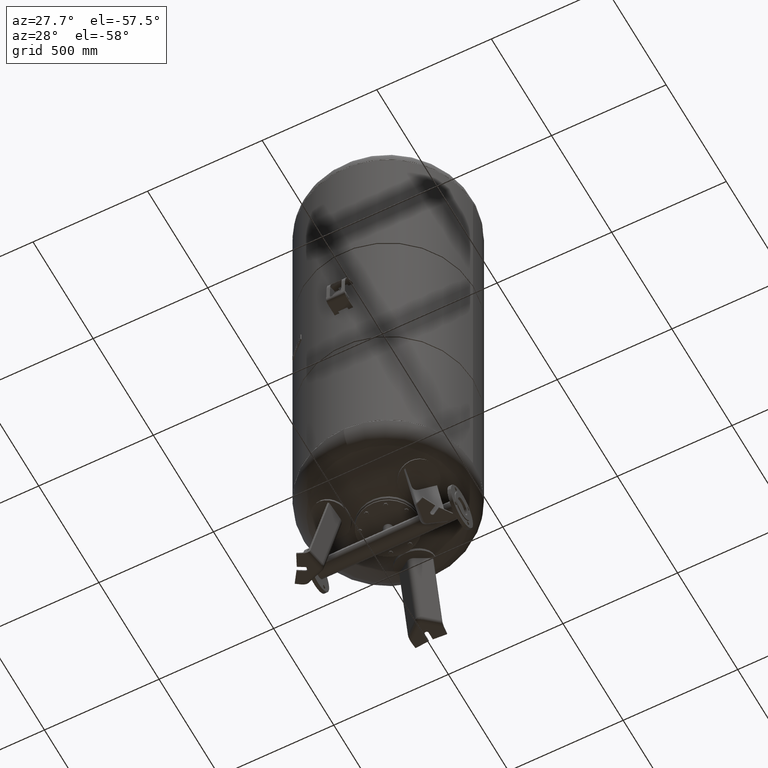
[diagram: clean part render]
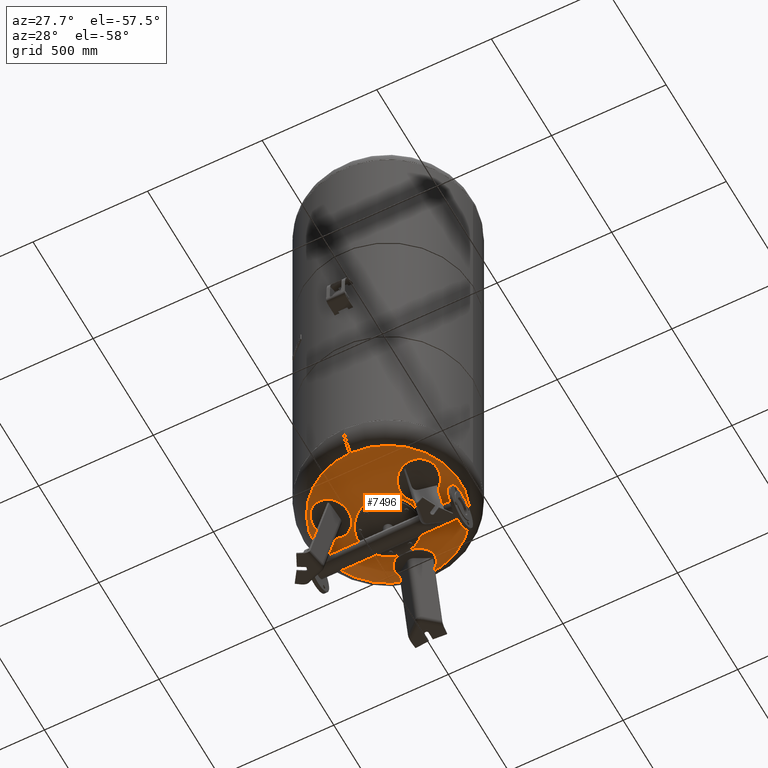
[diagram: same view with one face highlighted and labeled with its STEP entity id]
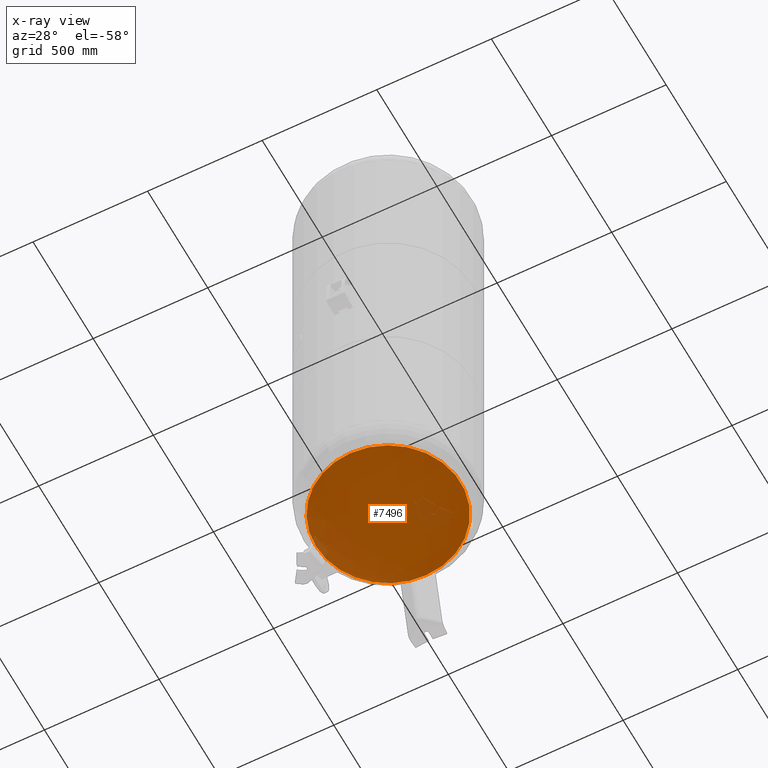
[diagram: x-ray of the same camera — body ghosted, the highlighted face saturated]
A machine part, auxiliary view. The second image highlights one B-rep face of the part: STEP entity #7496.
The next image is the same camera in x-ray: the body ghosted, the highlighted face saturated — about 4% of this face is hidden behind the body in this view.
In plain terms, the highlighted spherical surface has radius 594 mm.
Its self-contained STEP definition (entity closure, byte-faithful):
#7435=CARTESIAN_POINT('',(0.0,-315.931034482758610,413.985505725079410));
#7436=VERTEX_POINT('',#7435);
#7452=CARTESIAN_POINT('',(-3.868912E-014,315.931034482758610,413.985505725079630));
#7453=VERTEX_POINT('',#7452);
#7461=CARTESIAN_POINT('',(-315.931034482758610,-1.671377E-014,413.985505725079520));
#7462=VERTEX_POINT('',#7461);
#7463=CARTESIAN_POINT('',(0.0,-1.671377E-014,413.985505725079520));
#7464=DIRECTION('',(0.0,0.0,1.0));
#7465=DIRECTION('',(-1.0,0.0,0.0));
#7466=AXIS2_PLACEMENT_3D('',#7463,#7464,#7465);
#7467=CIRCLE('',#7466,315.931034482758610);
#7468=EDGE_CURVE('',#7453,#7462,#7467,.T.);
#7470=CARTESIAN_POINT('',(0.0,-1.671377E-014,413.985505725079520));
#7471=DIRECTION('',(0.0,0.0,1.0));
#7472=DIRECTION('',(-1.0,0.0,0.0));
#7473=AXIS2_PLACEMENT_3D('',#7470,#7471,#7472);
#7474=CIRCLE('',#7473,315.931034482758610);
#7475=EDGE_CURVE('',#7462,#7436,#7474,.T.);
#7480=CARTESIAN_POINT('',(0.0,-1.091160E-013,917.0));
#7481=DIRECTION('',(0.0,-1.0,0.0));
#7482=DIRECTION('',(1.0,0.0,0.0));
#7483=AXIS2_PLACEMENT_3D('',#7480,#7481,#7482);
#7484=SPHERICAL_SURFACE('',#7483,594.0);
#7485=ORIENTED_EDGE('',*,*,#7475,.F.);
#7486=ORIENTED_EDGE('',*,*,#7468,.F.);
#7487=CARTESIAN_POINT('',(0.0,-1.671377E-014,413.985505725079520));
#7488=DIRECTION('',(0.0,0.0,1.0));
#7489=DIRECTION('',(-1.0,0.0,0.0));
#7490=AXIS2_PLACEMENT_3D('',#7487,#7488,#7489);
#7491=CIRCLE('',#7490,315.931034482758610);
#7492=EDGE_CURVE('',#7436,#7453,#7491,.T.);
#7493=ORIENTED_EDGE('',*,*,#7492,.F.);
#7494=EDGE_LOOP('',(#7485,#7486,#7493));
#7495=FACE_OUTER_BOUND('',#7494,.T.);
#7496=ADVANCED_FACE('',(#7495),#7484,.T.);